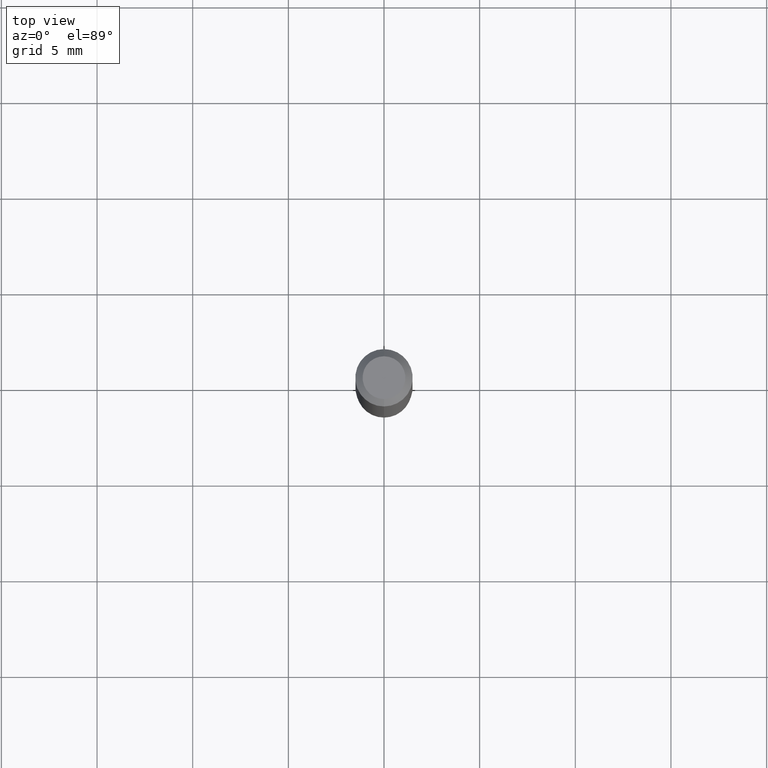
[diagram: clean part render]
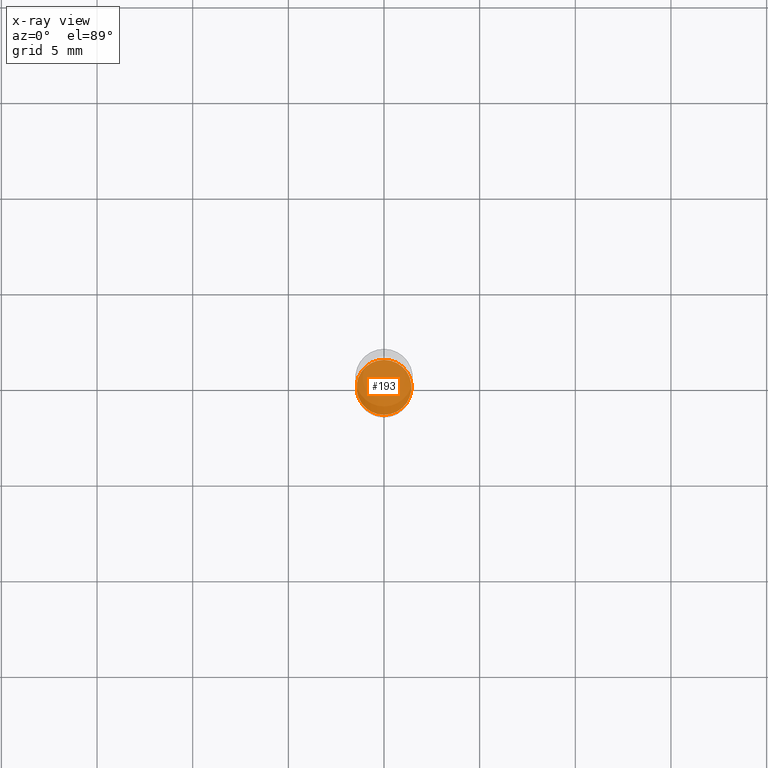
[diagram: x-ray — body ghosted, one internal face saturated and labeled with its STEP entity id]
A machine part, top view, then the same camera in x-ray: the body is ghosted and one INTERNAL B-rep face — a face not visible from any outside direction — is saturated and labeled: STEP entity #193.
In plain terms, the highlighted planar face has unit normal (-0, 0, 1).
Its self-contained STEP definition (entity closure, byte-faithful):
#6 = DIRECTION ( 'NONE',  ( -2.445514615068268608E-29, 3.491415737915220705E-15, 1.000000000000000000 ) ) ;
#60 = CARTESIAN_POINT ( 'NONE',  ( 2.821145659942754453E-29, -4.027697195258998875E-15, -1.153599999999999959 ) ) ;
#65 = PLANE ( 'NONE',  #154 ) ;
#66 = DIRECTION ( 'NONE',  ( -6.982962677686265922E-15, -1.000000000000000000, 3.491415737915221099E-15 ) ) ;
#76 = DIRECTION ( 'NONE',  ( -6.982962677686265922E-15, -1.000000000000000000, 2.413293280622141084E-15 ) ) ;
#101 = AXIS2_PLACEMENT_3D ( 'NONE', #491, #173, #76 ) ;
#102 = AXIS2_PLACEMENT_3D ( 'NONE', #368, #6, #485 ) ;
#146 = ORIENTED_EDGE ( 'NONE', *, *, #270, .F. ) ;
#154 = AXIS2_PLACEMENT_3D ( 'NONE', #60, #418, #66 ) ;
#160 = FACE_OUTER_BOUND ( 'NONE', #364, .T. ) ;
#173 = DIRECTION ( 'NONE',  ( -2.445514615068268608E-29, 3.491415737915220705E-15, 1.000000000000000000 ) ) ;
#193 = ADVANCED_FACE ( 'NONE', ( #160 ), #65, .F. ) ;
#225 = CIRCLE ( 'NONE', #102, 0.05659999999999999060 ) ;
#235 = CARTESIAN_POINT ( 'NONE',  ( -3.952356875570144057E-16, -0.05660000000000402209, -1.153599999999999737 ) ) ;
#259 = CARTESIAN_POINT ( 'NONE',  ( 4.039435452796452401E-16, 0.05659999999999596604, -1.153600000000000181 ) ) ;
#264 = CIRCLE ( 'NONE', #101, 0.05659999999999999060 ) ;
#270 = EDGE_CURVE ( 'NONE', #358, #278, #225, .T. ) ;
#278 = VERTEX_POINT ( 'NONE', #259 ) ;
#358 = VERTEX_POINT ( 'NONE', #235 ) ;
#364 = EDGE_LOOP ( 'NONE', ( #146, #381 ) ) ;
#368 = CARTESIAN_POINT ( 'NONE',  ( 2.821145659942754453E-29, -4.027697195258998875E-15, -1.153599999999999959 ) ) ;
#381 = ORIENTED_EDGE ( 'NONE', *, *, #400, .F. ) ;
#400 = EDGE_CURVE ( 'NONE', #278, #358, #264, .T. ) ;
#418 = DIRECTION ( 'NONE',  ( -2.445514615068268047E-29, 3.491415737915221099E-15, 1.000000000000000000 ) ) ;
#485 = DIRECTION ( 'NONE',  ( -6.982962677686265922E-15, -1.000000000000000000, 2.413293280622141084E-15 ) ) ;
#491 = CARTESIAN_POINT ( 'NONE',  ( 2.821145659942754453E-29, -4.027697195258998875E-15, -1.153599999999999959 ) ) ;